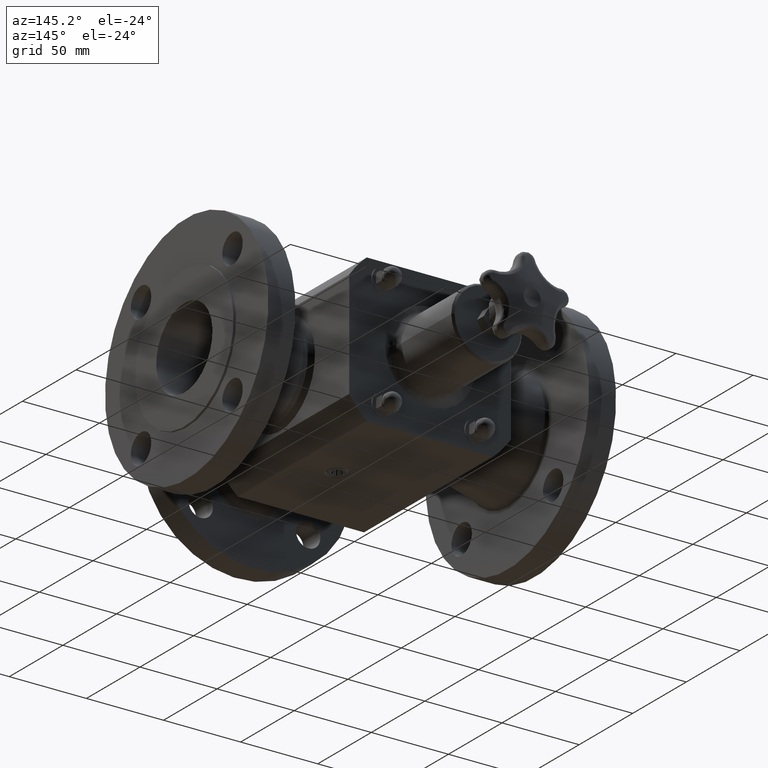
[diagram: clean part render]
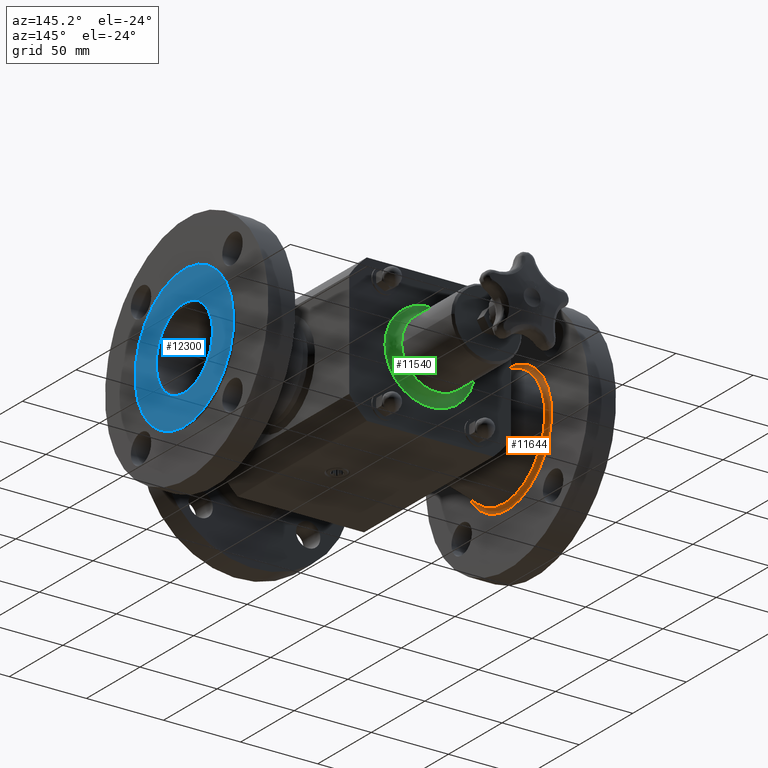
[diagram: same view with three faces highlighted in distinct colors, each labeled with its STEP entity id]
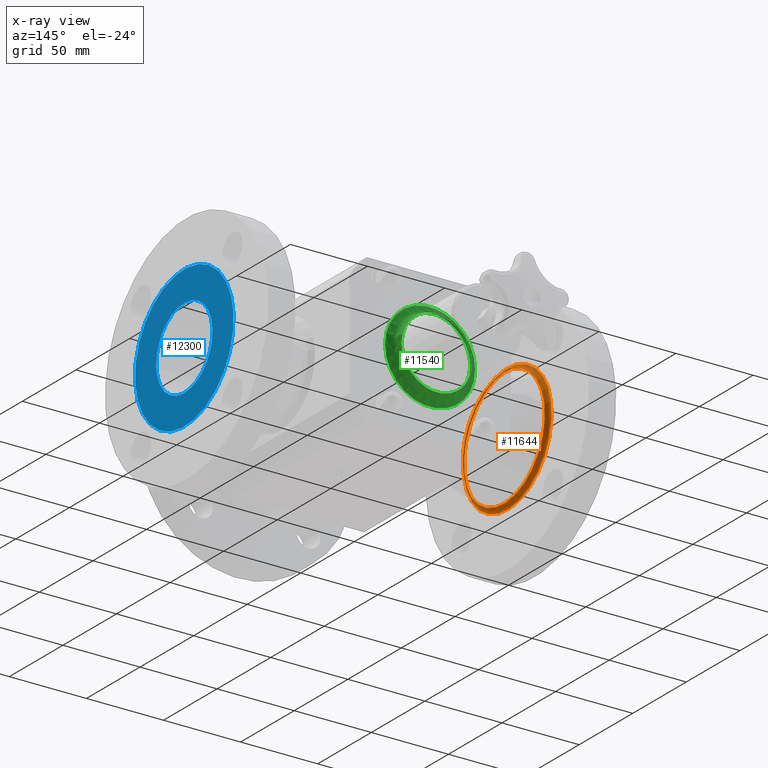
[diagram: x-ray of the same camera — body ghosted, the three highlighted faces saturated]
A machine part, auxiliary view with three faces highlighted in distinct colors.
The next image is the same camera in x-ray (body ghosted, the three faces saturated) — at least one of them is partly hidden behind the body in this view.
Their STEP definitions:

[orange] entity #11644 — the highlighted toroidal blend (fillet) surface has major radius 41.2762 mm and minor (blend) radius 3.048 mm.
#11617=CARTESIAN_POINT('',(-3.627500000007005,2.197999999999997,1.707788E-015));
#11618=DIRECTION('',(-1.0,-5.567208E-017,2.555914E-016));
#11619=DIRECTION('',(-1.413643E-016,-0.707106781186548,-0.707106781186548));
#11620=AXIS2_PLACEMENT_3D('',#11617,#11618,#11619);
#11621=TOROIDAL_SURFACE('',#11620,1.625047823470000,0.120000000000000);
#11622=CARTESIAN_POINT('',(-3.747500000007005,2.655515202301744,-1.559314037713369));
#11623=VERTEX_POINT('',#11622);
#11624=CARTESIAN_POINT('',(-3.747500000007005,2.197999999999997,1.738459E-015));
#11625=DIRECTION('',(-1.000000000000000,9.995965E-017,9.995965E-017));
#11626=DIRECTION('',(1.413643E-016,0.707106781186548,0.707106781186548));
#11627=AXIS2_PLACEMENT_3D('',#11624,#11625,#11626);
#11628=CIRCLE('',#11627,1.625047823470000);
#11629=EDGE_CURVE('',#11623,#11623,#11628,.T.);
#11630=ORIENTED_EDGE('',*,*,#11629,.F.);
#11631=EDGE_LOOP('',(#11630));
#11632=FACE_OUTER_BOUND('',#11631,.T.);
#11633=CARTESIAN_POINT('',(-3.654977464895005,2.622628072175544,-1.447227349856969));
#11634=VERTEX_POINT('',#11633);
#11635=CARTESIAN_POINT('',(-3.654977464895005,2.197999999999997,1.714811E-015));
#11636=DIRECTION('',(-1.000000000000000,9.995965E-017,9.995965E-017));
#11637=DIRECTION('',(1.413643E-016,0.707106781186548,0.707106781186548));
#11638=AXIS2_PLACEMENT_3D('',#11635,#11636,#11637);
#11639=CIRCLE('',#11638,1.508236056410000);
#11640=EDGE_CURVE('',#11634,#11634,#11639,.T.);
#11641=ORIENTED_EDGE('',*,*,#11640,.T.);
#11642=EDGE_LOOP('',(#11641));
#11643=FACE_BOUND('',#11642,.T.);
#11644=ADVANCED_FACE('',(#11632,#11643),#11621,.F.);

[blue] entity #12300 — the highlighted planar face has unit normal (1, 0, 0).
#12269=CARTESIAN_POINT('',(4.500000000010304,2.488971105437215,0.991694542592715));
#12270=VERTEX_POINT('',#12269);
#12271=CARTESIAN_POINT('',(4.500000000010303,2.198000000000001,5.135580E-016));
#12272=DIRECTION('',(1.000000000000000,1.677541E-016,-1.677541E-016));
#12273=DIRECTION('',(-2.372401E-016,0.707106781186548,-0.707106781186548));
#12274=AXIS2_PLACEMENT_3D('',#12271,#12272,#12273);
#12275=CIRCLE('',#12274,1.033500000000000);
#12276=EDGE_CURVE('',#12270,#12270,#12275,.T.);
#12281=CARTESIAN_POINT('',(4.500000000010303,1.467205141643704,-0.730794858356296));
#12282=DIRECTION('',(1.0,0.0,0.0));
#12283=DIRECTION('',(0.0,-0.707106781186548,0.707106781186548));
#12284=AXIS2_PLACEMENT_3D('',#12281,#12282,#12283);
#12285=PLANE('',#12284);
#12286=CARTESIAN_POINT('',(4.500000000010303,1.688413448628154,-1.736784830280827));
#12287=VERTEX_POINT('',#12286);
#12288=CARTESIAN_POINT('',(4.500000000010303,2.198000000000001,5.135580E-016));
#12289=DIRECTION('',(1.000000000000000,1.677541E-016,-1.677541E-016));
#12290=DIRECTION('',(-2.372401E-016,0.707106781186547,-0.707106781186547));
#12291=AXIS2_PLACEMENT_3D('',#12288,#12289,#12290);
#12292=CIRCLE('',#12291,1.810000000010000);
#12293=EDGE_CURVE('',#12287,#12287,#12292,.T.);
#12294=ORIENTED_EDGE('',*,*,#12293,.T.);
#12295=EDGE_LOOP('',(#12294));
#12296=FACE_OUTER_BOUND('',#12295,.T.);
#12297=ORIENTED_EDGE('',*,*,#12276,.F.);
#12298=EDGE_LOOP('',(#12297));
#12299=FACE_BOUND('',#12298,.T.);
#12300=ADVANCED_FACE('',(#12296,#12299),#12285,.T.);

[green] entity #11540 — the highlighted face is a freeform B-spline surface patch.
#11458=CARTESIAN_POINT('',(0.899999999999997,5.000000000000001,-5.794671E-016));
#11459=VERTEX_POINT('',#11458);
#11460=CARTESIAN_POINT('',(-3.543480E-015,5.0,-2.622574E-016));
#11461=DIRECTION('',(0.0,-1.0,0.0));
#11462=DIRECTION('',(1.0,0.0,0.0));
#11463=AXIS2_PLACEMENT_3D('',#11460,#11461,#11462);
#11464=CIRCLE('',#11463,0.900000000000000);
#11465=EDGE_CURVE('',#11459,#11459,#11464,.T.);
#11473=CARTESIAN_POINT('',(-3.221493E-015,5.000000000000002,1.400000000000000));
#11474=CARTESIAN_POINT('',(-2.993150E-015,4.750000000000000,1.400000000000002));
#11475=CARTESIAN_POINT('',(-3.050647E-015,4.750000000000000,1.150000000000000));
#11476=CARTESIAN_POINT('',(-3.108145E-015,4.750000000000000,0.899999999999998));
#11477=CARTESIAN_POINT('',(-3.336488E-015,5.000000000000002,0.900000000000000));
#11478=CARTESIAN_POINT('',(-1.400000000000004,5.000000000000001,1.400000000000000));
#11479=CARTESIAN_POINT('',(-1.400000000000005,4.749999999999999,1.400000000000002));
#11480=CARTESIAN_POINT('',(-1.150000000000003,4.749999999999999,1.150000000000000));
#11481=CARTESIAN_POINT('',(-0.900000000000001,4.749999999999999,0.899999999999998));
#11482=CARTESIAN_POINT('',(-0.900000000000003,5.000000000000001,0.900000000000000));
#11483=CARTESIAN_POINT('',(-1.400000000000004,5.000000000000001,5.972934E-017));
#11484=CARTESIAN_POINT('',(-1.400000000000006,4.749999999999999,5.972934E-017));
#11485=CARTESIAN_POINT('',(-1.150000000000004,4.749999999999999,2.231709E-018));
#11486=CARTESIAN_POINT('',(-0.900000000000002,4.749999999999999,-5.526592E-017));
#11487=CARTESIAN_POINT('',(-0.900000000000004,5.000000000000001,-5.526592E-017));
#11488=CARTESIAN_POINT('',(-1.400000000000004,5.000000000000001,-1.400000000000000));
#11489=CARTESIAN_POINT('',(-1.400000000000006,4.749999999999999,-1.400000000000002));
#11490=CARTESIAN_POINT('',(-1.150000000000004,4.749999999999999,-1.150000000000000));
#11491=CARTESIAN_POINT('',(-0.900000000000002,4.749999999999999,-0.899999999999998));
#11492=CARTESIAN_POINT('',(-0.900000000000004,5.000000000000001,-0.900000000000000));
#11493=CARTESIAN_POINT('',(-3.865466E-015,5.000000000000002,-1.400000000000001));
#11494=CARTESIAN_POINT('',(-3.637123E-015,4.750000000000000,-1.400000000000003));
#11495=CARTESIAN_POINT('',(-3.579625E-015,4.750000000000000,-1.150000000000001));
#11496=CARTESIAN_POINT('',(-3.522128E-015,4.750000000000000,-0.899999999999999));
#11497=CARTESIAN_POINT('',(-3.750471E-015,5.000000000000002,-0.900000000000001));
#11498=CARTESIAN_POINT('',(1.399999999999996,5.000000000000003,-1.400000000000001));
#11499=CARTESIAN_POINT('',(1.399999999999999,4.750000000000001,-1.400000000000003));
#11500=CARTESIAN_POINT('',(1.149999999999997,4.750000000000001,-1.150000000000001));
#11501=CARTESIAN_POINT('',(0.899999999999995,4.750000000000001,-0.899999999999999));
#11502=CARTESIAN_POINT('',(0.899999999999996,5.000000000000003,-0.900000000000000));
#11503=CARTESIAN_POINT('',(1.399999999999997,5.000000000000003,-5.842442E-016));
#11504=CARTESIAN_POINT('',(1.399999999999999,4.750000000000001,-5.842442E-016));
#11505=CARTESIAN_POINT('',(1.149999999999997,4.750000000000001,-5.267465E-016));
#11506=CARTESIAN_POINT('',(0.899999999999995,4.750000000000001,-4.692489E-016));
#11507=CARTESIAN_POINT('',(0.899999999999997,5.000000000000003,-4.692489E-016));
#11508=CARTESIAN_POINT('',(1.399999999999997,5.000000000000003,1.400000000000000));
#11509=CARTESIAN_POINT('',(1.399999999999999,4.750000000000001,1.400000000000002));
#11510=CARTESIAN_POINT('',(1.149999999999997,4.750000000000001,1.150000000000000));
#11511=CARTESIAN_POINT('',(0.899999999999995,4.750000000000001,0.899999999999998));
#11512=CARTESIAN_POINT('',(0.899999999999997,5.000000000000003,0.900000000000000));
#11513=CARTESIAN_POINT('',(-3.221493E-015,5.000000000000002,1.400000000000000));
#11514=CARTESIAN_POINT('',(-2.993150E-015,4.750000000000000,1.400000000000002));
#11515=CARTESIAN_POINT('',(-3.050647E-015,4.750000000000000,1.150000000000000));
#11516=CARTESIAN_POINT('',(-3.108145E-015,4.750000000000000,0.899999999999998));
#11517=CARTESIAN_POINT('',(-3.336488E-015,5.000000000000002,0.900000000000000));
#11525=(BOUNDED_SURFACE()B_SPLINE_SURFACE(2,2,((#11473,#11478,#11483,#11488,#11493,#11498,#11503,#11508,#11513),(#11474,#11479,#11484,#11489,#11494,#11499,#11504,#11509,#11514),(#11475,#11480,#11485,#11490,#11495,#11500,#11505,#11510,#11515),(#11476,#11481,#11486,#11491,#11496,#11501,#11506,#11511,#11516),(#11477,#11482,#11487,#11492,#11497,#11502,#11507,#11512,#11517)),.UNSPECIFIED.,.F.,.T.,.U.)B_SPLINE_SURFACE_WITH_KNOTS((3,2,3),(3,2,2,2,3),(-7.754233E-015,1.570796326794897,3.141592653589801),(0.0,1.570796326794897,3.141592653589793,4.712388980384690,6.283185307179586),.UNSPECIFIED.)GEOMETRIC_REPRESENTATION_ITEM()RATIONAL_B_SPLINE_SURFACE(((1.0,0.707106781186548,1.0,0.707106781186548,1.0,0.707106781186548,1.0,0.707106781186548,1.0),(0.707106781186549,0.500000000000001,0.707106781186549,0.500000000000001,0.707106781186549,0.500000000000001,0.707106781186549,0.500000000000001,0.707106781186549),(1.0,0.707106781186548,1.0,0.707106781186548,1.0,0.707106781186548,1.0,0.707106781186548,1.0),(0.707106781186549,0.500000000000001,0.707106781186549,0.500000000000001,0.707106781186549,0.500000000000001,0.707106781186549,0.500000000000001,0.707106781186549),(1.0,0.707106781186548,1.0,0.707106781186548,1.0,0.707106781186548,1.0,0.707106781186548,1.0)))REPRESENTATION_ITEM('')SURFACE());
#11526=CARTESIAN_POINT('',(1.149999999999997,4.750000000000001,-6.675809E-016));
#11527=VERTEX_POINT('',#11526);
#11528=CARTESIAN_POINT('',(-3.315136E-015,4.750000000000000,-2.622574E-016));
#11529=DIRECTION('',(0.0,-1.0,0.0));
#11530=DIRECTION('',(1.0,0.0,0.0));
#11531=AXIS2_PLACEMENT_3D('',#11528,#11529,#11530);
#11532=CIRCLE('',#11531,1.150000000000000);
#11533=EDGE_CURVE('',#11527,#11527,#11532,.T.);
#11534=ORIENTED_EDGE('',*,*,#11533,.F.);
#11535=EDGE_LOOP('',(#11534));
#11536=FACE_OUTER_BOUND('',#11535,.T.);
#11537=ORIENTED_EDGE('',*,*,#11465,.T.);
#11538=EDGE_LOOP('',(#11537));
#11539=FACE_BOUND('',#11538,.T.);
#11540=ADVANCED_FACE('',(#11536,#11539),#11525,.T.);